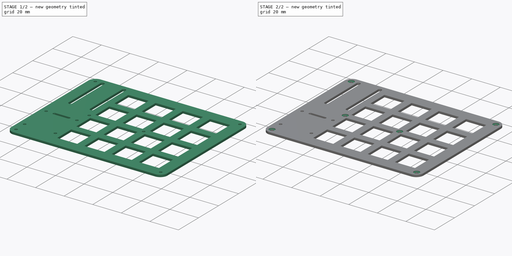
[diagram: build sequence overview — one tinted view per stage of 2, left to right]
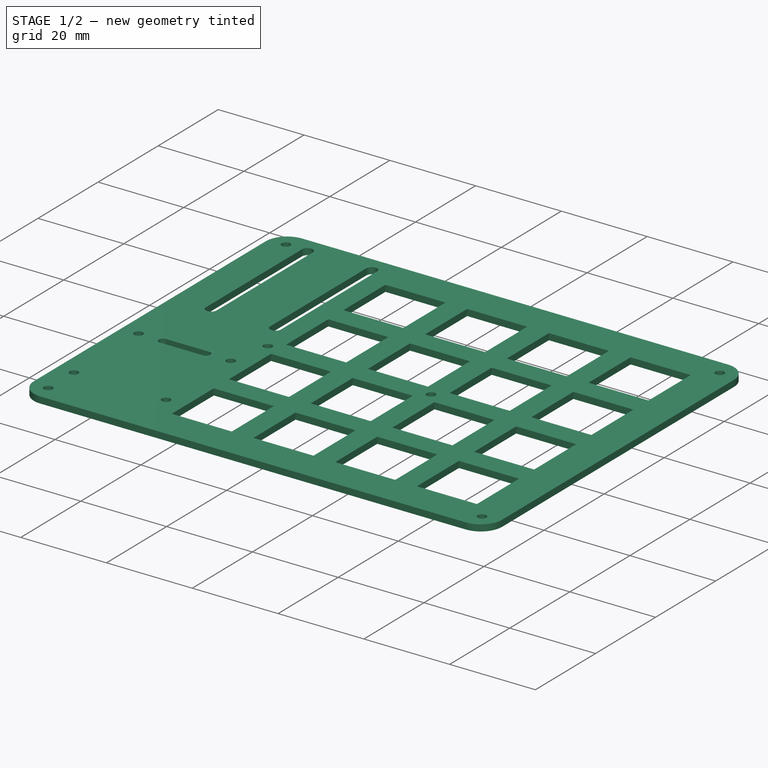
[diagram: stage 1 of 2 — iso view after this stage's code; geometry added in this stage tinted green]
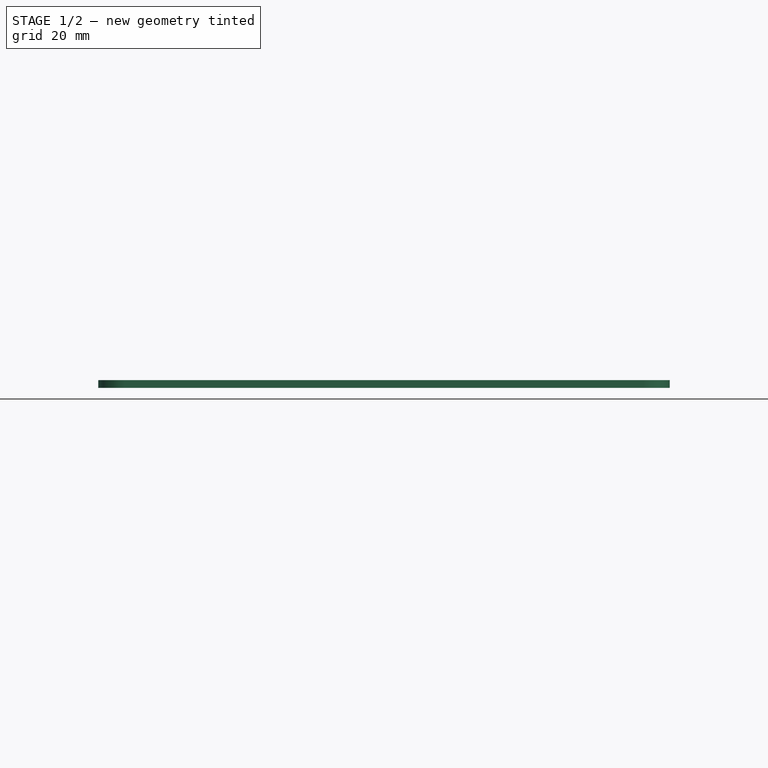
[diagram: stage 1 of 2 — front view after this stage's code; geometry added in this stage tinted green]
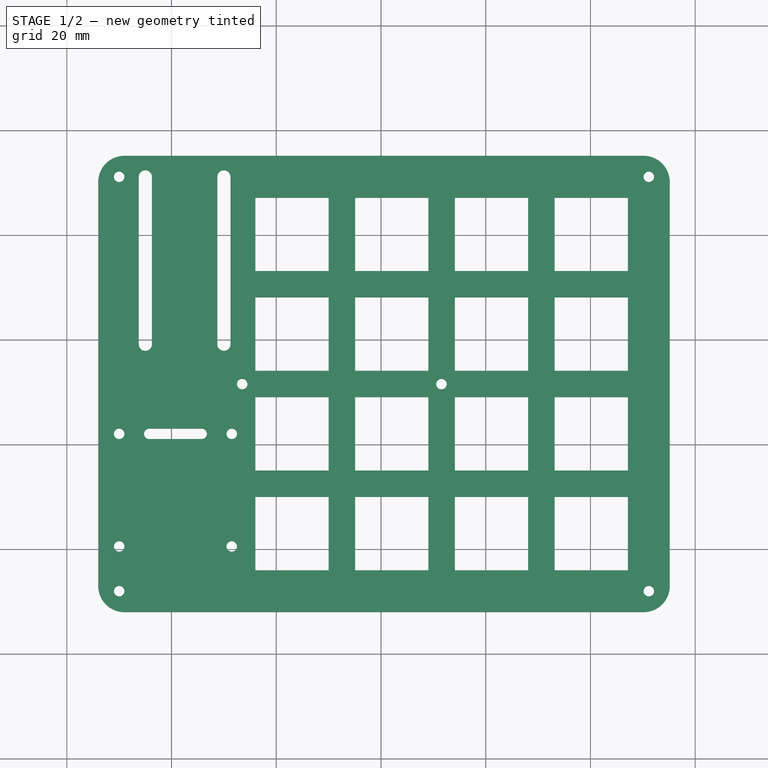
[diagram: stage 1 of 2 — top view after this stage's code; geometry added in this stage tinted green]
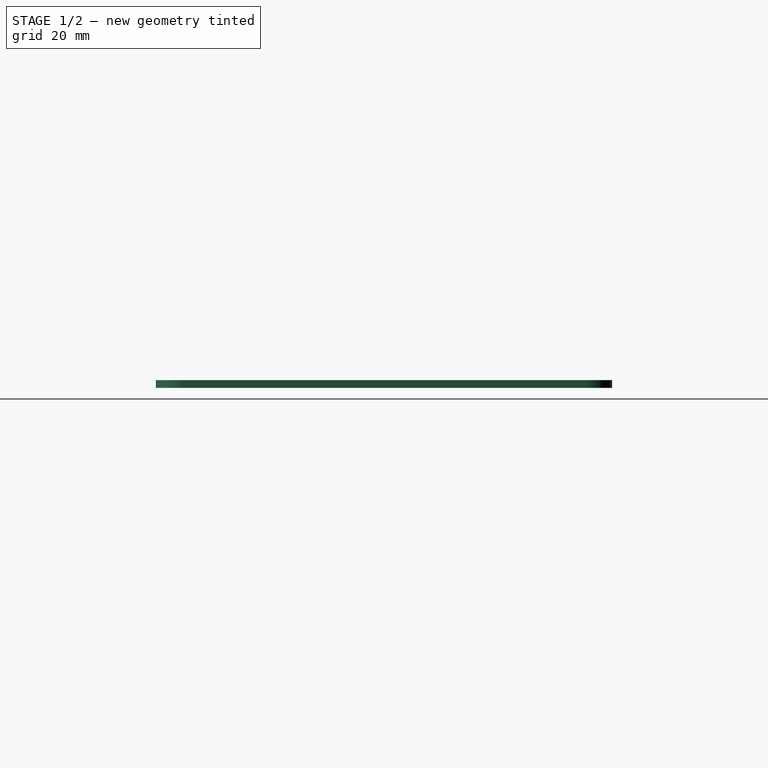
[diagram: stage 1 of 2 — right view after this stage's code; geometry added in this stage tinted green]
FCSTD DOCUMENT  (FreeCAD 1.0R39319 (Git))
Label: Jomiepad_Top
License: All rights reserved
LicenseURL: https://en.wikipedia.org/wiki/All_rights_reserved
objects: Sketcher::SketchObject×2, PartDesign::Pad×1, PartDesign::Pocket×1, PartDesign::Body×1
note: 11 computed .brp shape members not serialized (recipe doc carries the construction recipe); baked Part::Feature solids carry a one-line shape summary decoded from their .brp

FEATURE [Sketcher::SketchObject] Sketch
  ArcFitTolerance = 1e-06
  AttachmentSupport = -> [XY_Plane]
  FullyConstrained = true
  MakeInternals = false
  MapMode = 5
  sketch-geometry (96):
    g0: LineSegment StartX=50 StartY=50 StartZ=0 EndX=36 EndY=50 EndZ=0
    g1: LineSegment StartX=36 StartY=50 StartZ=0 EndX=36 EndY=36 EndZ=0
    g2: LineSegment StartX=36 StartY=36 StartZ=0 EndX=50 EndY=36 EndZ=0
    g3: LineSegment StartX=50 StartY=36 StartZ=0 EndX=50 EndY=50 EndZ=0
    g4: LineSegment StartX=69.05 StartY=50 StartZ=0 EndX=55.05 EndY=50 EndZ=0
    g5: LineSegment StartX=55.05 StartY=50 StartZ=0 EndX=55.05 EndY=36 EndZ=0
    g6: LineSegment StartX=55.05 StartY=36 StartZ=0 EndX=69.05 EndY=36 EndZ=0
    g7: LineSegment StartX=69.05 StartY=36 StartZ=0 EndX=69.05 EndY=50 EndZ=0
    g8: LineSegment StartX=88.1 StartY=50 StartZ=0 EndX=74.1 EndY=50 EndZ=0
    g9: LineSegment StartX=74.1 StartY=50 StartZ=0 EndX=74.1 EndY=36 EndZ=0
    g10: LineSegment StartX=74.1 StartY=36 StartZ=0 EndX=88.1 EndY=36 EndZ=0
    g11: LineSegment StartX=88.1 StartY=36 StartZ=0 EndX=88.1 EndY=50 EndZ=0
    g12: LineSegment StartX=107.15 StartY=50 StartZ=0 EndX=93.15 EndY=50 EndZ=0
    g13: LineSegment StartX=93.15 StartY=50 StartZ=0 EndX=93.15 EndY=36 EndZ=0
    g14: LineSegment StartX=93.15 StartY=36 StartZ=0 EndX=107.15 EndY=36 EndZ=0
    g15: LineSegment StartX=107.15 StartY=36 StartZ=0 EndX=107.15 EndY=50 EndZ=0
    g16: LineSegment StartX=50 StartY=69.05 StartZ=0 EndX=36 EndY=69.05 EndZ=0
    g17: LineSegment StartX=36 StartY=69.05 StartZ=0 EndX=36 EndY=55.05 EndZ=0
    g18: LineSegment StartX=36 StartY=55.05 StartZ=0 EndX=50 EndY=55.05 EndZ=0
    g19: LineSegment StartX=50 StartY=55.05 StartZ=0 EndX=50 EndY=69.05 EndZ=0
    g20: LineSegment StartX=69.05 StartY=69.05 StartZ=0 EndX=55.05 EndY=69.05 EndZ=0
    g21: LineSegment StartX=55.05 StartY=69.05 StartZ=0 EndX=55.05 EndY=55.05 EndZ=0
    g22: LineSegment StartX=55.05 StartY=55.05 StartZ=0 EndX=69.05 EndY=55.05 EndZ=0
    g23: LineSegment StartX=69.05 StartY=55.05 StartZ=0 EndX=69.05 EndY=69.05 EndZ=0
    g24: LineSegment StartX=88.1 StartY=69.05 StartZ=0 EndX=74.1 EndY=69.05 EndZ=0
    g25: LineSegment StartX=74.1 StartY=69.05 StartZ=0 EndX=74.1 EndY=55.05 EndZ=0
    g26: LineSegment StartX=74.1 StartY=55.05 StartZ=0 EndX=88.1 EndY=55.05 EndZ=0
    g27: LineSegment StartX=88.1 StartY=55.05 StartZ=0 EndX=88.1 EndY=69.05 EndZ=0
    g28: LineSegment StartX=107.15 StartY=69.05 StartZ=0 EndX=93.15 EndY=69.05 EndZ=0
    g29: LineSegment StartX=93.15 StartY=69.05 StartZ=0 EndX=93.15 EndY=55.05 EndZ=0
    g30: LineSegment StartX=93.15 StartY=55.05 StartZ=0 EndX=107.15 EndY=55.05 EndZ=0
    g31: LineSegment StartX=107.15 StartY=55.05 StartZ=0 EndX=107.15 EndY=69.05 EndZ=0
    g32: LineSegment StartX=50 StartY=88.1 StartZ=0 EndX=36 EndY=88.1 EndZ=0
    g33: LineSegment StartX=36 StartY=88.1 StartZ=0 EndX=36 EndY=74.1 EndZ=0
    g34: LineSegment StartX=36 StartY=74.1 StartZ=0 EndX=50 EndY=74.1 EndZ=0
    g35: LineSegment StartX=50 StartY=74.1 StartZ=0 EndX=50 EndY=88.1 EndZ=0
    g36: LineSegment StartX=69.05 StartY=88.1 StartZ=0 EndX=55.05 EndY=88.1 EndZ=0
    g37: LineSegment StartX=55.05 StartY=88.1 StartZ=0 EndX=55.05 EndY=74.1 EndZ=0
    g38: LineSegment StartX=55.05 StartY=74.1 StartZ=0 EndX=69.05 EndY=74.1 EndZ=0
    g39: LineSegment StartX=69.05 StartY=74.1 StartZ=0 EndX=69.05 EndY=88.1 EndZ=0
    g40: LineSegment StartX=88.1 StartY=88.1 StartZ=0 EndX=74.1 EndY=88.1 EndZ=0
    g41: LineSegment StartX=74.1 StartY=88.1 StartZ=0 EndX=74.1 EndY=74.1 EndZ=0
    g42: LineSegment StartX=74.1 StartY=74.1 StartZ=0 EndX=88.1 EndY=74.1 EndZ=0
    g43: LineSegment StartX=88.1 StartY=74.1 StartZ=0 EndX=88.1 EndY=88.1 EndZ=0
    g44: LineSegment StartX=107.15 StartY=88.1 StartZ=0 EndX=93.15 EndY=88.1 EndZ=0
    g45: LineSegment StartX=93.15 StartY=88.1 StartZ=0 EndX=93.15 EndY=74.1 EndZ=0
    g46: LineSegment StartX=93.15 StartY=74.1 StartZ=0 EndX=107.15 EndY=74.1 EndZ=0
    g47: LineSegment StartX=107.15 StartY=74.1 StartZ=0 EndX=107.15 EndY=88.1 EndZ=0
    g48: LineSegment StartX=50 StartY=107.15 StartZ=0 EndX=36 EndY=107.15 EndZ=0
    g49: LineSegment StartX=36 StartY=107.15 StartZ=0 EndX=36 EndY=93.15 EndZ=0
    g50: LineSegment StartX=36 StartY=93.15 StartZ=0 EndX=50 EndY=93.15 EndZ=0
    g51: LineSegment StartX=50 StartY=93.15 StartZ=0 EndX=50 EndY=107.15 EndZ=0
    g52: LineSegment StartX=69.05 StartY=107.15 StartZ=0 EndX=55.05 EndY=107.15 EndZ=0
    g53: LineSegment StartX=55.05 StartY=107.15 StartZ=0 EndX=55.05 EndY=93.15 EndZ=0
    g54: LineSegment StartX=55.05 StartY=93.15 StartZ=0 EndX=69.05 EndY=93.15 EndZ=0
    g55: LineSegment StartX=69.05 StartY=93.15 StartZ=0 EndX=69.05 EndY=107.15 EndZ=0
    g56: LineSegment StartX=88.1 StartY=107.15 StartZ=0 EndX=74.1 EndY=107.15 EndZ=0
    g57: LineSegment StartX=74.1 StartY=107.15 StartZ=0 EndX=74.1 EndY=93.15 EndZ=0
    g58: LineSegment StartX=74.1 StartY=93.15 StartZ=0 EndX=88.1 EndY=93.15 EndZ=0
    g59: LineSegment StartX=88.1 StartY=93.15 StartZ=0 EndX=88.1 EndY=107.15 EndZ=0
    g60: LineSegment StartX=107.15 StartY=107.15 StartZ=0 EndX=93.15 EndY=107.15 EndZ=0
    g61: LineSegment StartX=93.15 StartY=107.15 StartZ=0 EndX=93.15 EndY=93.15 EndZ=0
    g62: LineSegment StartX=93.15 StartY=93.15 StartZ=0 EndX=107.15 EndY=93.15 EndZ=0
    g63: LineSegment StartX=107.15 StartY=93.15 StartZ=0 EndX=107.15 EndY=107.15 EndZ=0
    g64: LineSegment StartX=115.15 StartY=33 StartZ=0 EndX=115.15 EndY=110.15 EndZ=0
    g65: LineSegment StartX=110.15 StartY=115.15 StartZ=0 EndX=11 EndY=115.15 EndZ=0
    g66: LineSegment StartX=6 StartY=110.15 StartZ=0 EndX=6 EndY=33 EndZ=0
    g67: LineSegment StartX=11 StartY=28 StartZ=0 EndX=110.15 EndY=28 EndZ=0
    g68: ArcOfCircle CenterX=110.15 CenterY=33 CenterZ=0 NormalX=0 NormalY=0 NormalZ=1 AngleXU=0 Radius=5 StartAngle=4.71239 EndAngle=6.28319
    g69: ArcOfCircle CenterX=110.15 CenterY=110.15 CenterZ=0 NormalX=0 NormalY=0 NormalZ=1 AngleXU=0 Radius=5 StartAngle=-9e-16 EndAngle=1.5708
    g70: ArcOfCircle CenterX=11 CenterY=110.15 CenterZ=0 NormalX=0 NormalY=0 NormalZ=1 AngleXU=0 Radius=5 StartAngle=1.5708 EndAngle=3.14159
    g71: ArcOfCircle CenterX=11 CenterY=33 CenterZ=0 NormalX=0 NormalY=0 NormalZ=1 AngleXU=0 Radius=5 StartAngle=3.14159 EndAngle=4.71239
    g72: GeomPoint [constr] X=115.15 Y=28 Z=0
    g73: GeomPoint [constr] X=6 Y=115.15 Z=0
    g74: Circle CenterX=10 CenterY=111.15 CenterZ=0 NormalX=0 NormalY=0 NormalZ=1 AngleXU=0 Radius=1
    g75: Circle CenterX=10 CenterY=32 CenterZ=0 NormalX=0 NormalY=0 NormalZ=1 AngleXU=0 Radius=1
    g76: Circle CenterX=111.15 CenterY=32 CenterZ=0 NormalX=0 NormalY=0 NormalZ=1 AngleXU=0 Radius=1
    g77: Circle CenterX=111.15 CenterY=111.15 CenterZ=0 NormalX=0 NormalY=0 NormalZ=1 AngleXU=0 Radius=1
    g78: Circle CenterX=71.55 CenterY=71.55 CenterZ=0 NormalX=0 NormalY=0 NormalZ=1 AngleXU=0 Radius=1
    g79: Circle CenterX=33.5 CenterY=71.55 CenterZ=0 NormalX=0 NormalY=0 NormalZ=1 AngleXU=0 Radius=1
    g80: ArcOfCircle CenterX=15 CenterY=111.15 CenterZ=0 NormalX=0 NormalY=0 NormalZ=1 AngleXU=0 Radius=1.25 StartAngle=5e-16 EndAngle=3.14159
    g81: ArcOfCircle CenterX=15 CenterY=79.15 CenterZ=0 NormalX=0 NormalY=0 NormalZ=1 AngleXU=0 Radius=1.25 StartAngle=3.14159 EndAngle=6.28319
    g82: LineSegment StartX=16.25 StartY=111.15 StartZ=0 EndX=16.25 EndY=79.15 EndZ=0
    g83: LineSegment StartX=13.75 StartY=111.15 StartZ=0 EndX=13.75 EndY=79.15 EndZ=0
    g84: ArcOfCircle CenterX=30 CenterY=111.15 CenterZ=0 NormalX=0 NormalY=0 NormalZ=1 AngleXU=0 Radius=1.25 StartAngle=3.6e-15 EndAngle=3.14159
    g85: ArcOfCircle CenterX=30 CenterY=79.15 CenterZ=0 NormalX=0 NormalY=0 NormalZ=1 AngleXU=0 Radius=1.25 StartAngle=3.14159 EndAngle=6.28319
    g86: LineSegment StartX=31.25 StartY=111.15 StartZ=0 EndX=31.25 EndY=79.15 EndZ=0
    g87: LineSegment StartX=28.75 StartY=111.15 StartZ=0 EndX=28.75 EndY=79.15 EndZ=0
    g88: Circle CenterX=31.5 CenterY=62.05 CenterZ=0 NormalX=0 NormalY=0 NormalZ=1 AngleXU=0 Radius=1
    g89: Circle CenterX=10 CenterY=62.05 CenterZ=0 NormalX=0 NormalY=0 NormalZ=1 AngleXU=0 Radius=1
    g90: Circle CenterX=10 CenterY=40.55 CenterZ=0 NormalX=0 NormalY=0 NormalZ=1 AngleXU=0 Radius=1
    g91: Circle CenterX=31.5 CenterY=40.55 CenterZ=0 NormalX=0 NormalY=0 NormalZ=1 AngleXU=0 Radius=1
    g92: ArcOfCircle CenterX=15.75 CenterY=62.05 CenterZ=0 NormalX=0 NormalY=0 NormalZ=1 AngleXU=0 Radius=1 StartAngle=1.5708 EndAngle=4.71239
    g93: ArcOfCircle CenterX=25.75 CenterY=62.05 CenterZ=0 NormalX=0 NormalY=0 NormalZ=1 AngleXU=0 Radius=1 StartAngle=4.71239 EndAngle=7.85398
    g94: LineSegment StartX=15.75 StartY=63.05 StartZ=0 EndX=25.75 EndY=63.05 EndZ=0
    g95: LineSegment StartX=15.75 StartY=61.05 StartZ=0 EndX=25.75 EndY=61.05 EndZ=0
  constraints (276):
    c: Coincident(g0,g1)
    c: Coincident(g1,g2)
    c: Coincident(g2,g3)
    c: Coincident(g3,g0)
    c: Horizontal(g0)
    c: Horizontal(g2)
    c: Vertical(g1)
    c: Vertical(g3)
    c: Distance(g1,g3) = 14
    c: Distance(g0,g2) = 14
    c: Distance(g0,g-1) = 50
    c: Distance(g2,g-2) = 50
    c: Coincident(g4,g5)
    c: Coincident(g8,g9)
    c: Coincident(g12,g13)
    c: Coincident(g16,g17)
    c: Coincident(g20,g21)
    c: Coincident(g24,g25)
    c: Coincident(g28,g29)
    c: Coincident(g32,g33)
    c: Coincident(g36,g37)
    c: Coincident(g40,g41)
    c: Coincident(g44,g45)
    c: Coincident(g48,g49)
    c: Coincident(g52,g53)
    c: Coincident(g56,g57)
    c: Coincident(g60,g61)
    c: Coincident(g5,g6)
    c: Coincident(g9,g10)
    c: Coincident(g13,g14)
    c: Coincident(g17,g18)
    c: Coincident(g21,g22)
    c: Coincident(g25,g26)
    c: Coincident(g29,g30)
    c: Coincident(g33,g34)
    c: Coincident(g37,g38)
    c: Coincident(g41,g42)
    c: Coincident(g45,g46)
    c: Coincident(g49,g50)
    c: Coincident(g53,g54)
    c: Coincident(g57,g58)
    c: Coincident(g61,g62)
    c: Coincident(g6,g7)
    c: Coincident(g10,g11)
    c: Coincident(g14,g15)
    c: Coincident(g18,g19)
    c: Coincident(g22,g23)
    c: Coincident(g26,g27)
    c: Coincident(g30,g31)
    c: Coincident(g34,g35)
    c: Coincident(g38,g39)
    c: Coincident(g42,g43)
    c: Coincident(g46,g47)
    c: Coincident(g50,g51)
    c: Coincident(g54,g55)
    c: Coincident(g58,g59)
    c: Coincident(g62,g63)
    c: Coincident(g7,g4)
    c: Coincident(g11,g8)
    c: Coincident(g15,g12)
    c: Coincident(g19,g16)
    c: Coincident(g23,g20)
    c: Coincident(g27,g24)
    c: Coincident(g31,g28)
    c: Coincident(g35,g32)
    c: Coincident(g39,g36)
    c: Coincident(g43,g40)
    c: Coincident(g47,g44)
    c: Coincident(g51,g48)
    c: Coincident(g55,g52)
    c: Coincident(g59,g56)
    c: Coincident(g63,g60)
    c: Horizontal(g4)
    c: Horizontal(g8)
    c: Horizontal(g12)
    c: Horizontal(g16)
    c: Horizontal(g20)
    c: Horizontal(g24)
    c: Horizontal(g28)
    c: Horizontal(g32)
    c: Horizontal(g36)
    c: Horizontal(g40)
    c: Horizontal(g44)
    c: Horizontal(g48)
    c: Horizontal(g52)
    c: Horizontal(g56)
    c: Horizontal(g60)
    c: Horizontal(g6)
    c: Horizontal(g10)
    c: Horizontal(g14)
    c: Horizontal(g18)
    c: Horizontal(g22)
    c: Horizontal(g26)
    c: Horizontal(g30)
    c: Horizontal(g34)
    c: Horizontal(g38)
    c: Horizontal(g42)
    c: Horizontal(g46)
    c: Horizontal(g50)
    c: Horizontal(g54)
    c: Horizontal(g58)
    c: Horizontal(g62)
    c: Vertical(g5)
    c: Vertical(g9)
    c: Vertical(g13)
    c: Vertical(g17)
    c: Vertical(g21)
    c: Vertical(g25)
    c: Vertical(g29)
    c: Vertical(g33)
    c: Vertical(g37)
    c: Vertical(g41)
    c: Vertical(g45)
    c: Vertical(g49)
    c: Vertical(g53)
    c: Vertical(g57)
    c: Vertical(g61)
    c: Vertical(g7)
    c: Vertical(g11)
    c: Vertical(g15)
    c: Vertical(g19)
    c: Vertical(g23)
    c: Vertical(g27)
    c: Vertical(g31)
    c: Vertical(g35)
    c: Vertical(g39)
    c: Vertical(g43)
    c: Vertical(g47)
    c: Vertical(g51)
    c: Vertical(g55)
    c: Vertical(g59)
    c: Vertical(g63)
    c: Distance(g5,g7) = 14
    c: Distance(g9,g11) = 14
    c: Distance(g13,g15) = 14
    c: Distance(g17,g19) = 14
    c: Distance(g21,g23) = 14
    c: Distance(g25,g27) = 14
    c: Distance(g29,g31) = 14
    c: Distance(g33,g35) = 14
    c: Distance(g37,g39) = 14
    c: Distance(g41,g43) = 14
    c: Distance(g45,g47) = 14
    c: Distance(g49,g51) = 14
    c: Distance(g53,g55) = 14
    c: Distance(g57,g59) = 14
    c: Distance(g61,g63) = 14
    c: Distance(g4,g6) = 14
    c: Distance(g8,g10) = 14
    c: Distance(g12,g14) = 14
    c: Distance(g16,g18) = 14
    c: Distance(g20,g22) = 14
    c: Distance(g24,g26) = 14
    c: Distance(g28,g30) = 14
    c: Distance(g32,g34) = 14
    c: Distance(g36,g38) = 14
    c: Distance(g40,g42) = 14
    c: Distance(g44,g46) = 14
    c: Distance(g48,g50) = 14
    c: Distance(g52,g54) = 14
    c: Distance(g56,g58) = 14
    c: Distance(g60,g62) = 14
    c: Distance(g5,g3) = 5.05
    c: Distance(g21,g19) = 5.05
    c: Distance(g0,g18) = 5.05
    c: Distance(g-1,g6) = 36
    c: Distance(g-1,g10) = 36
    c: Distance(g14,g-1) = 36
    c: Distance(g9,g7) = 5.05
    c: Distance(g13,g11) = 5.05
    c: Distance(g-2,g17) = 36
    c: Distance(g-2,g33) = 36
    c: Distance(g-2,g49) = 36
    c: Distance(g25,g23) = 5.05
    c: Distance(g29,g27) = 5.05
    c: Distance(g37,g35) = 5.05
    c: Distance(g41,g39) = 5.05
    c: Distance(g45,g43) = 5.05
    c: Distance(g53,g51) = 5.05
    c: Distance(g57,g55) = 5.05
    c: Distance(g61,g59) = 5.05
    c: Distance(g34,g16) = 5.05
    c: Distance(g50,g32) = 5.05
    c: Distance(g22,g4) = 5.05
    c: Distance(g38,g20) = 5.05
    c: Distance(g54,g36) = 5.05
    c: Distance(g26,g8) = 5.05
    c: Distance(g42,g24) = 5.05
    c: Distance(g58,g40) = 5.05
    c: Distance(g62,g44) = 5.05
    c: Distance(g28,g46) = 5.05
    c: Distance(g30,g12) = 5.05
    c: Tangent(g64,g68) = -1.5708
    c: Tangent(g64,g69) = -1.5708
    c: Tangent(g65,g69) = -1.5708
    c: Tangent(g65,g70) = -1.5708
    c: Tangent(g66,g70) = -1.5708
    c: Tangent(g66,g71) = -1.5708
    c: Tangent(g67,g71) = -1.5708
    c: Tangent(g67,g68) = -1.5708
    c: Vertical(g64)
    c: Vertical(g66)
    c: Horizontal(g65)
    c: Horizontal(g67)
    c: Equal(g68,g69)
    c: Equal(g69,g70)
    c: Equal(g70,g71)
    c: PointOnObject(g72,g64)
    c: PointOnObject(g72,g67)
    c: PointOnObject(g73,g65)
    c: PointOnObject(g73,g66)
    c: Radius(g69) = 5
    c: Distance(g64,g15) = 8
    c: Distance(g67,g14) = 8
    c: Distance(g65,g60) = 8
    c: Distance(g66,g1) = 30
    c: Diameter(g74) = 2
    c: Distance(g74,g65) = 4
    c: Distance(g74,g66) = 4
    c: Diameter(g75) = 2
    c: Distance(g75,g67) = 4
    c: Distance(g75,g66) = 4
    c: Diameter(g76) = 2
    c: Distance(g76,g67) = 4
    c: Distance(g76,g64) = 4
    c: Diameter(g77) = 2
    c: Distance(g77,g65) = 4
    c: Distance(g77,g64) = 4
    c: Diameter(g78) = 2
    c: Distance(g78,g20) = 2.5
    c: Distance(g78,g23) = 2.5
    c: Diameter(g79) = 2
    c: Distance(g79,g17) = 2.5
    c: Horizontal(g79,g78)
    c: Tangent(g80,g82) = 1.5708
    c: Tangent(g80,g83) = -1.5708
    c: Tangent(g81,g82) = 1.5708
    c: Tangent(g81,g83) = -1.5708
    c: Equal(g80,g81)
    c: Vertical(g82)
    c: Distance(g82,g83) = 2.5
    c: DistanceY(g81,g80) = 32
    c: Horizontal(g80,g74)
    c: DistanceX(g74,g80) = 5
    c: Tangent(g84,g86) = 1.5708
    c: Tangent(g84,g87) = -1.5708
    c: Tangent(g85,g86) = 1.5708
    c: Tangent(g85,g87) = -1.5708
    c: Equal(g84,g85)
    c: Vertical(g86)
    c: Distance(g86,g87) = 2.5
    c: DistanceY(g85,g84) = 32
    c: Horizontal(g80,g84)
    c: DistanceX(g80,g84) = 15
    c: Diameter(g88) = 2
    c: Diameter(g89) = 2
    c: DistanceX(g89,g88) = 21.5
    c: Diameter(g90) = 2
    c: Vertical(g90,g89)
    c: DistanceY(g90,g89) = 21.5
    c: Diameter(g91) = 2
    c: Horizontal(g90,g91)
    c: Vertical(g91,g88)
    c: Distance(g89,g66) = 4
    c: Tangent(g92,g94) = 1.5708
    c: Tangent(g92,g95) = -1.5708
    c: Tangent(g93,g94) = 1.5708
    c: Tangent(g93,g95) = -1.5708
    c: Equal(g92,g93)
    c: Horizontal(g95)
    c: Distance(g95,g94) = 2
    c: DistanceX(g92,g93) = 10
    c: DistanceX(g89,g92) = 5.75
    c: Horizontal(g92,g89)
    c: Horizontal(g93,g88)
    c: DistanceY(g88,g16) = 7
FEATURE [PartDesign::Pad] Pad
  Direction = (0,0,1)
  Length = 1.5
  Length2 = 10
  Profile = -> Sketch
  ReferenceAxis = -> Sketch [N_Axis]
  Refine = true
  Suppressed = false
  Type = 0
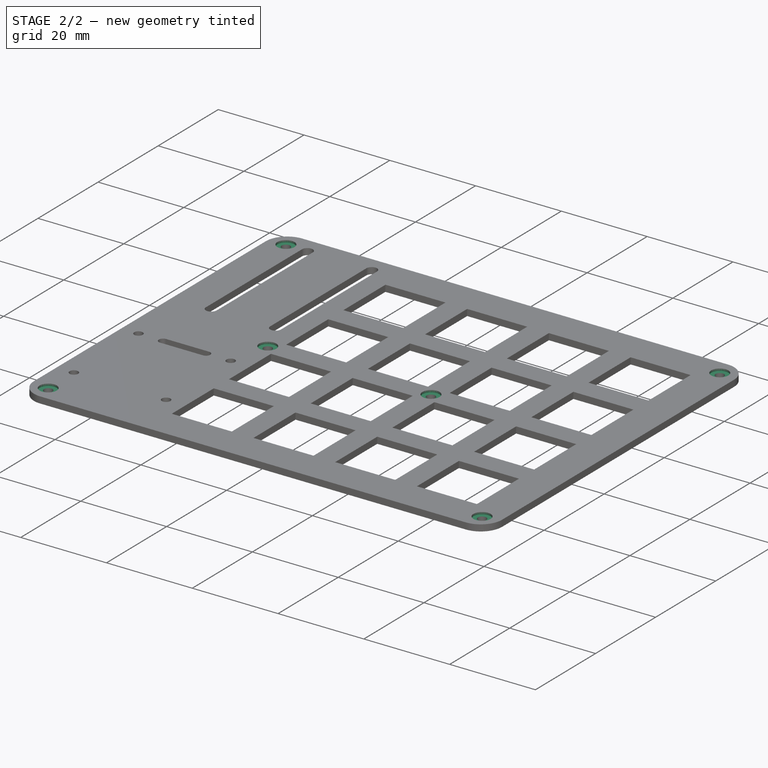
[diagram: stage 2 of 2 — iso view after this stage's code; geometry added in this stage tinted green]
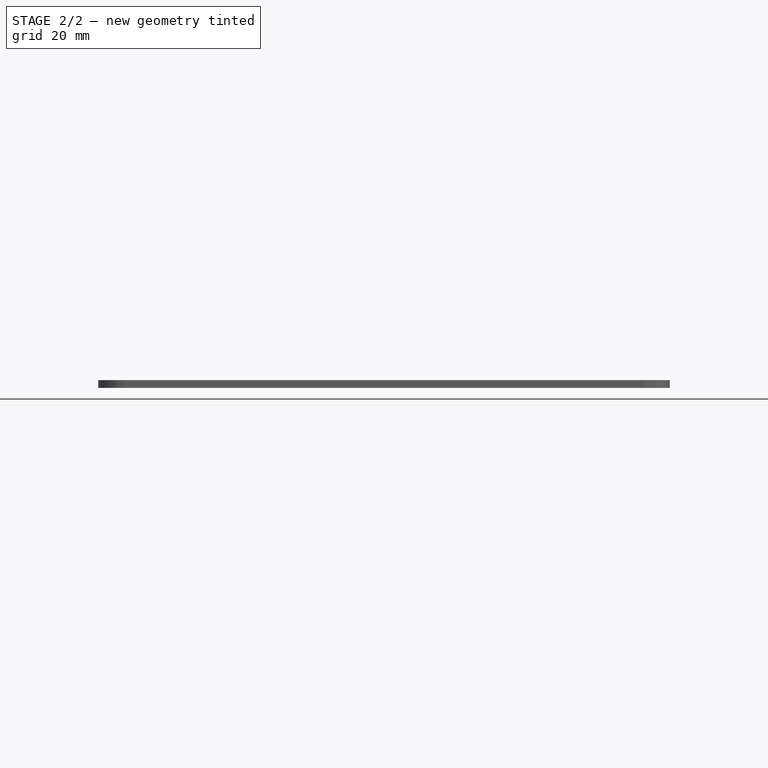
[diagram: stage 2 of 2 — front view after this stage's code; geometry added in this stage tinted green]
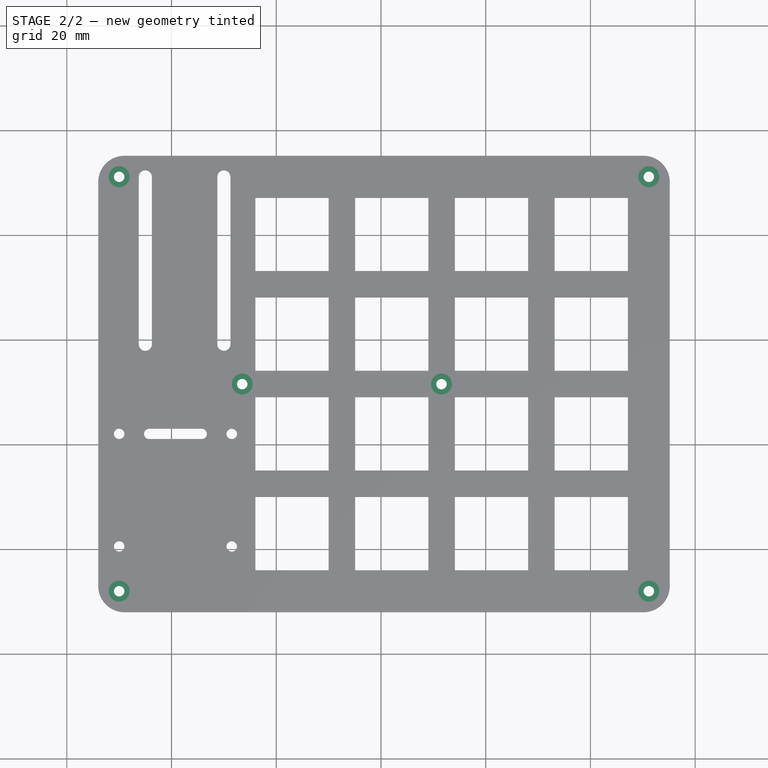
[diagram: stage 2 of 2 — top view after this stage's code; geometry added in this stage tinted green]
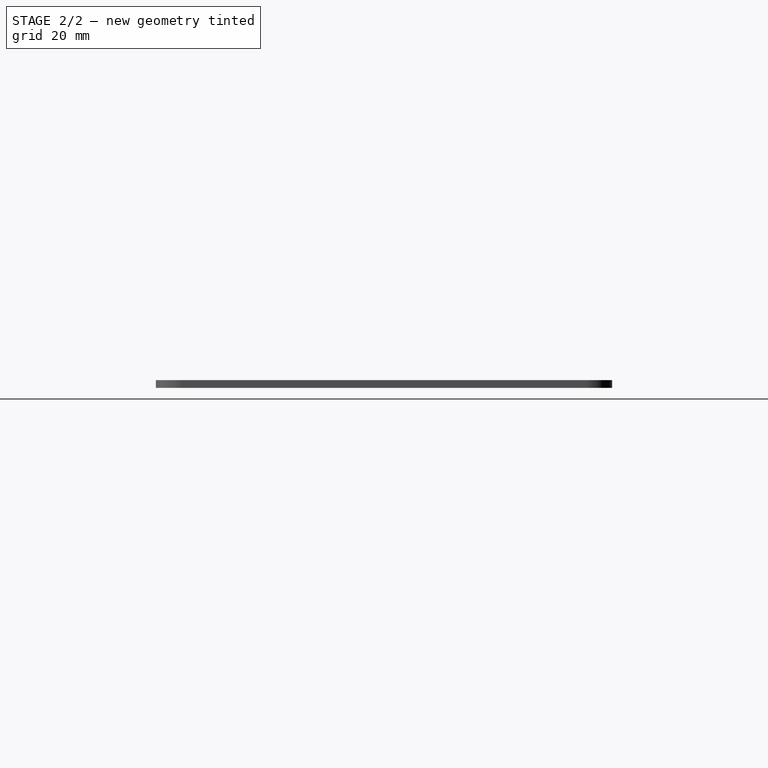
[diagram: stage 2 of 2 — right view after this stage's code; geometry added in this stage tinted green]
FEATURE [Sketcher::SketchObject] Sketch001
  ArcFitTolerance = 1e-06
  AttachmentSupport = -> [XY_Plane]
  FullyConstrained = false
  MakeInternals = false
  MapMode = 5
  sketch-geometry (6):
    g0: Circle CenterX=10 CenterY=111.15 CenterZ=0 NormalX=0 NormalY=0 NormalZ=1 AngleXU=0 Radius=2
    g1: Circle CenterX=10 CenterY=32 CenterZ=0 NormalX=0 NormalY=0 NormalZ=1 AngleXU=0 Radius=2
    g2: Circle CenterX=111.15 CenterY=32 CenterZ=0 NormalX=0 NormalY=0 NormalZ=1 AngleXU=0 Radius=2
    g3: Circle CenterX=111.15 CenterY=111.15 CenterZ=0 NormalX=0 NormalY=0 NormalZ=1 AngleXU=0 Radius=2
    g4: Circle CenterX=71.55 CenterY=71.55 CenterZ=0 NormalX=0 NormalY=0 NormalZ=1 AngleXU=0 Radius=2
    g5: Circle CenterX=33.5 CenterY=71.55 CenterZ=0 NormalX=0 NormalY=0 NormalZ=1 AngleXU=0 Radius=2
  constraints (7):
    c: Diameter(g0) = 4
    c: Diameter(g1) = 4
    c: Diameter(g2) = 4
    c: Diameter(g3) = 4
    c: Diameter(g4) = 4
    c: Diameter(g5) = 4
    c: Horizontal(g5,g4)
FEATURE [PartDesign::Pocket] Pocket
  BaseFeature = -> Pad
  Direction = (0,0,-1)
  Length = 15
  Length2 = -1
  Offset = 1
  Profile = -> Sketch001
  ReferenceAxis = -> Sketch001 [N_Axis]
  Refine = true
  Reversed = true
  Suppressed = false
  Type = 4
FEATURE [PartDesign::Body] Body
  AllowCompound = false
  Group = -> [Sketch,Pad,Sketch001,Pocket]
  Origin = -> Origin
  Tip = -> Pocket
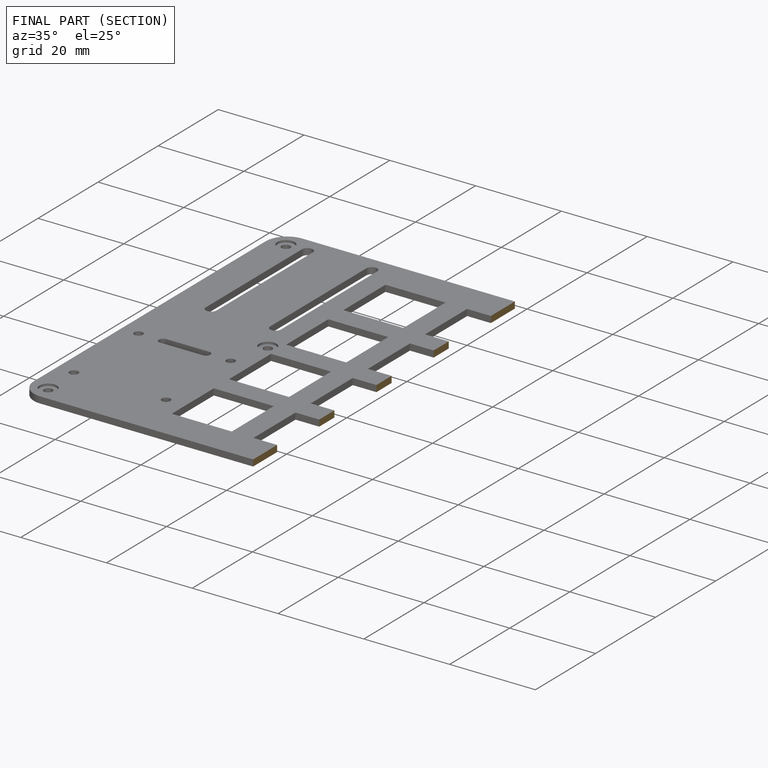
[diagram: finished part — half-section view (interior)]
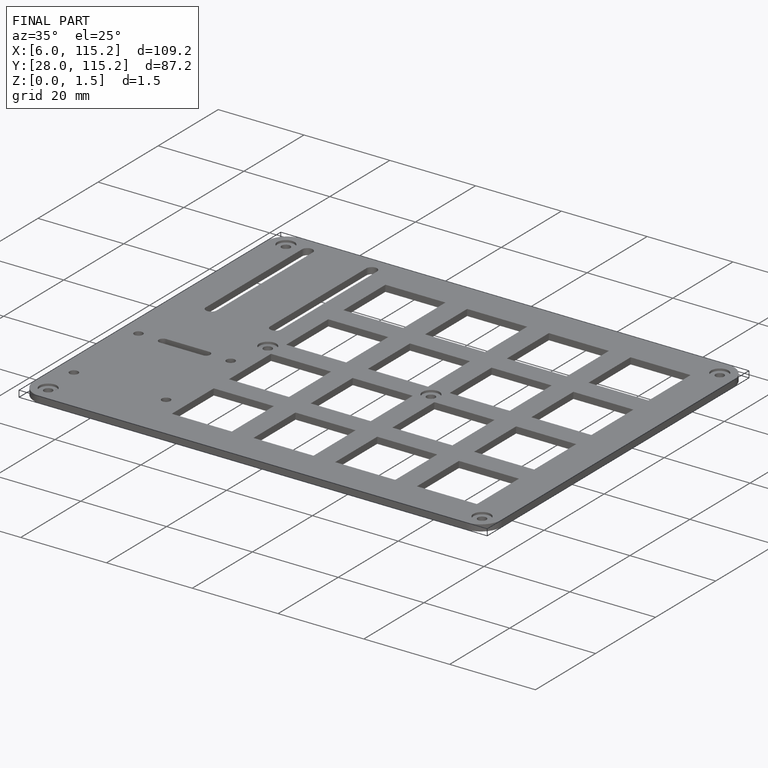
[diagram: finished part — iso view with bounding-box wireframe]
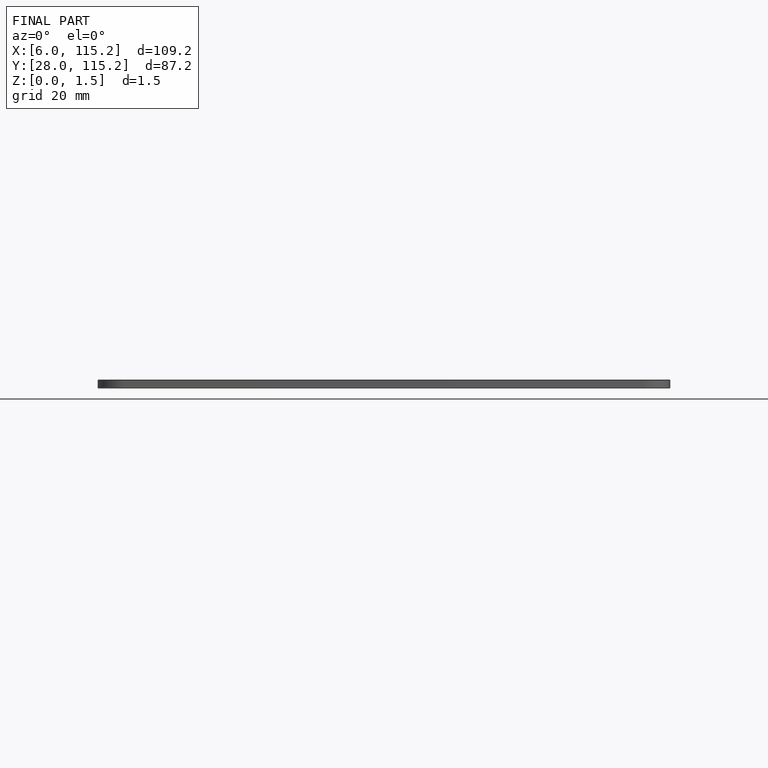
[diagram: finished part — front view with bounding-box wireframe]
